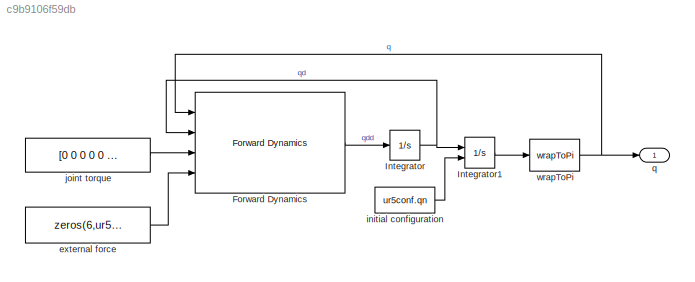
MODEL slx_c9b9106f59db
KIND model
CONFIG AbsTol = auto
CONFIG EnableMultiTasking = on
CONFIG FixedStep = auto
CONFIG InitFcn = if ~exist("ur5", "var")\n   ur5 = loadrobot("universalUR5e", DataFormat="row", Gravity=[0 0 -9.81]);\nend\n\nif ~exist("ur5conf", "var")\n  ur5conf.qn = [0 -1.07 1.38 -0.3 0 -2.3];\nend
CONFIG MaxStep = auto
CONFIG MinStep = auto
CONFIG PreLoadFcn = if ~exist("ur5", "var")\n   ur5 = loadrobot("universalUR5e", DataFormat="row", Gravity=[0 0 -9.81]);\nend\n\nif ~exist("ur5conf", "var")\n  ur5conf.qn = [0 -1.07 1.38 -0.3 0 -2.3];\nend
CONFIG RelTol = 1e-3
CONFIG SampleTimeConstraint = Unconstrained
CONFIG SolverName = ode45
CONFIG StartTime = 0.0
CONFIG StopTime = 1.5
BLOCK [Reference] Forward Dynamics  REF=robotmaniplib/Forward Dynamics
  Ports = [4, 1]
  SourceBlock = robotmaniplib/Forward Dynamics
  SourceProductBaseCode = RO
  SourceType = Forward Dynamics
BLOCK [Integrator] Integrator
  Ports = [1, 1]
BLOCK [Integrator] Integrator1
  InitialCondition = conf.qs
  InitialConditionSource = external
  Ports = [2, 1]
BLOCK [Constant] external force
  Value = zeros(6,ur5.NumBodies)
BLOCK [Constant] initial configuration
  Value = ur5conf.qn
BLOCK [Constant] joint torque
  Value = [0 0 0 0 0 0]'
BLOCK [Outport] q
BLOCK [Reference] wrapToPi  REF=roblocks/wrapToPi  (lib defined in mdl_2a292b13c81b, mdl_69400f8cfe22, +12 more)
  Ports = [1, 1]
  SourceBlock = roblocks/wrapToPi
LINE Forward Dynamics:1 -> Integrator:1
LINE Integrator1:1 -> wrapToPi:1
NET Integrator:1 -> Forward Dynamics:2, Integrator1:1
LINE external force:1 -> Forward Dynamics:4
LINE initial configuration:1 -> Integrator1:2
LINE joint torque:1 -> Forward Dynamics:3
NET wrapToPi:1 -> Forward Dynamics:1, q:1
note: NET lines group one-source signal fan-out (src -> all destinations, sorted); 1:1 wires keep LINE
